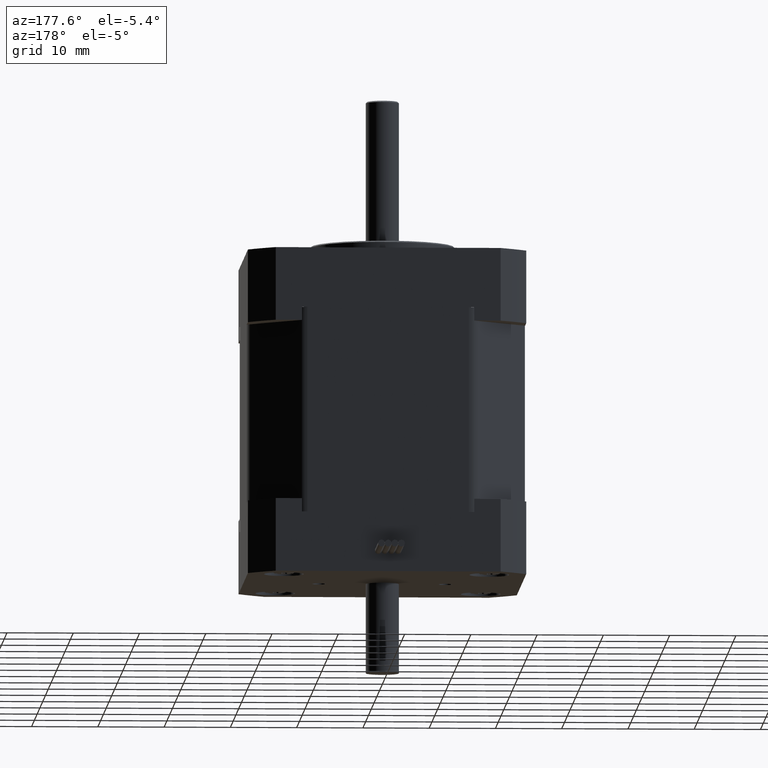
[diagram: clean part render]
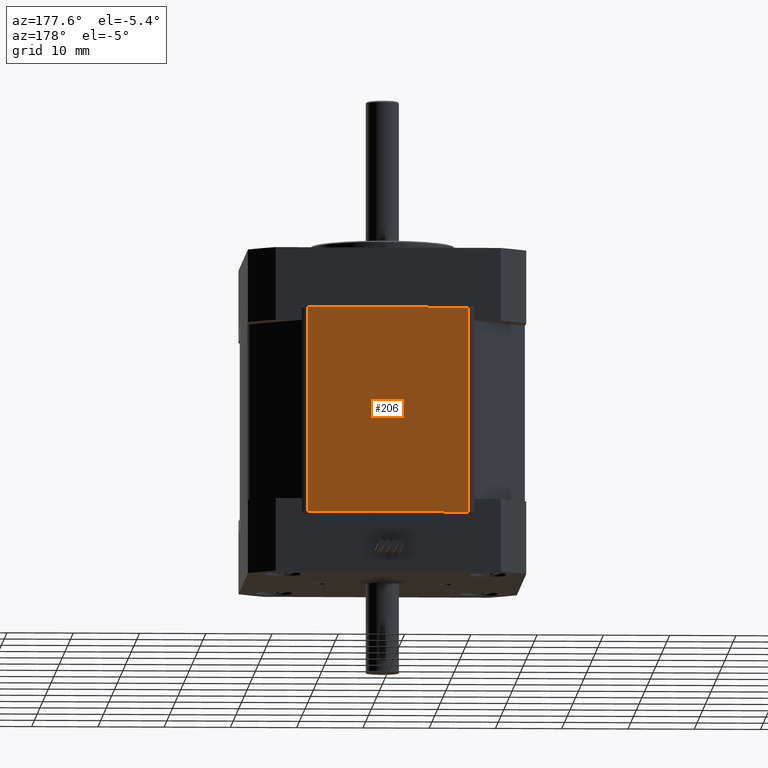
[diagram: same view with one face highlighted and labeled with its STEP entity id]
A machine part, auxiliary view. The second image highlights one B-rep face of the part: STEP entity #206.
In plain terms, the highlighted planar face has unit normal (0, 1, 0).
Its self-contained STEP definition (entity closure, byte-faithful):
#148=CARTESIAN_POINT('',(-12.171572875253837,20.999999999999986,15.250000000000011));
#149=VERTEX_POINT('',#148);
#157=CARTESIAN_POINT('',(-12.171572875253837,20.999999999999986,-15.750000000000007));
#158=VERTEX_POINT('',#157);
#159=CARTESIAN_POINT('',(-12.171572875253837,20.999999999999986,15.250000000000011));
#160=DIRECTION('',(0.0,0.0,-1.0));
#161=VECTOR('',#160,31.000000000000018);
#162=LINE('',#159,#161);
#163=EDGE_CURVE('',#149,#158,#162,.T.);
#176=CARTESIAN_POINT('',(-13.000000000000028,20.999999999999986,0.0));
#177=DIRECTION('',(0.0,1.0,0.0));
#178=DIRECTION('',(0.0,0.0,1.0));
#179=AXIS2_PLACEMENT_3D('',#176,#177,#178);
#180=PLANE('',#179);
#181=CARTESIAN_POINT('',(12.171572875253791,21.000000000000014,15.250000000000007));
#182=VERTEX_POINT('',#181);
#183=CARTESIAN_POINT('',(-12.171572875253837,20.999999999999986,15.250000000000011));
#184=DIRECTION('',(1.0,0.0,0.0));
#185=VECTOR('',#184,24.343145750507627);
#186=LINE('',#183,#185);
#187=EDGE_CURVE('',#149,#182,#186,.T.);
#188=ORIENTED_EDGE('',*,*,#187,.T.);
#189=CARTESIAN_POINT('',(12.171572875253791,21.000000000000014,-15.750000000000007));
#190=VERTEX_POINT('',#189);
#191=CARTESIAN_POINT('',(12.171572875253791,21.000000000000014,-15.750000000000007));
#192=DIRECTION('',(0.0,0.0,1.0));
#193=VECTOR('',#192,31.000000000000014);
#194=LINE('',#191,#193);
#195=EDGE_CURVE('',#190,#182,#194,.T.);
#196=ORIENTED_EDGE('',*,*,#195,.F.);
#197=CARTESIAN_POINT('',(12.171572875253791,21.000000000000014,-15.750000000000007));
#198=DIRECTION('',(-1.0,0.0,0.0));
#199=VECTOR('',#198,24.343145750507631);
#200=LINE('',#197,#199);
#201=EDGE_CURVE('',#190,#158,#200,.T.);
#202=ORIENTED_EDGE('',*,*,#201,.T.);
#203=ORIENTED_EDGE('',*,*,#163,.F.);
#204=EDGE_LOOP('',(#188,#196,#202,#203));
#205=FACE_OUTER_BOUND('',#204,.T.);
#206=ADVANCED_FACE('',(#205),#180,.T.);